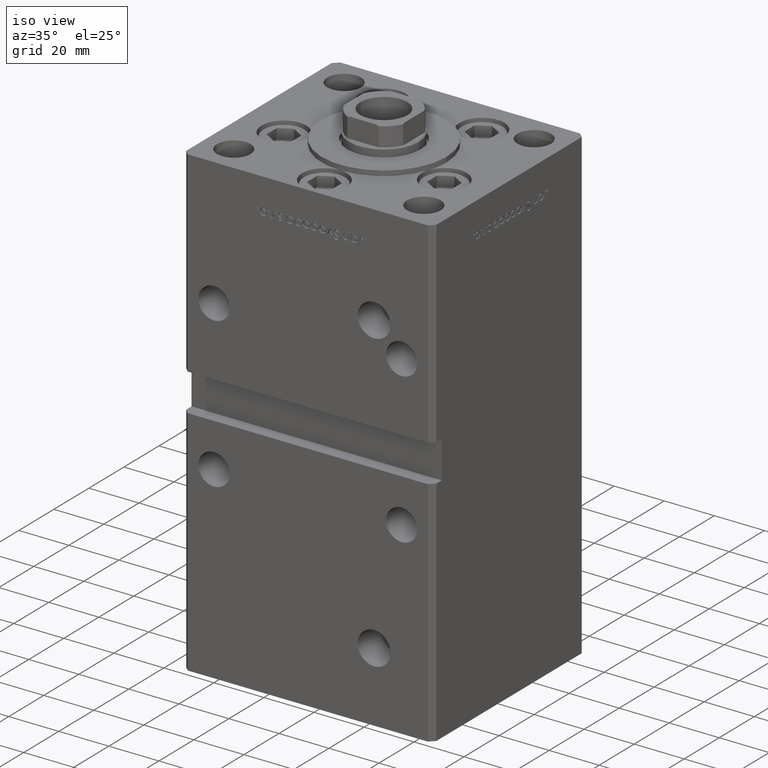
[diagram: clean part render]
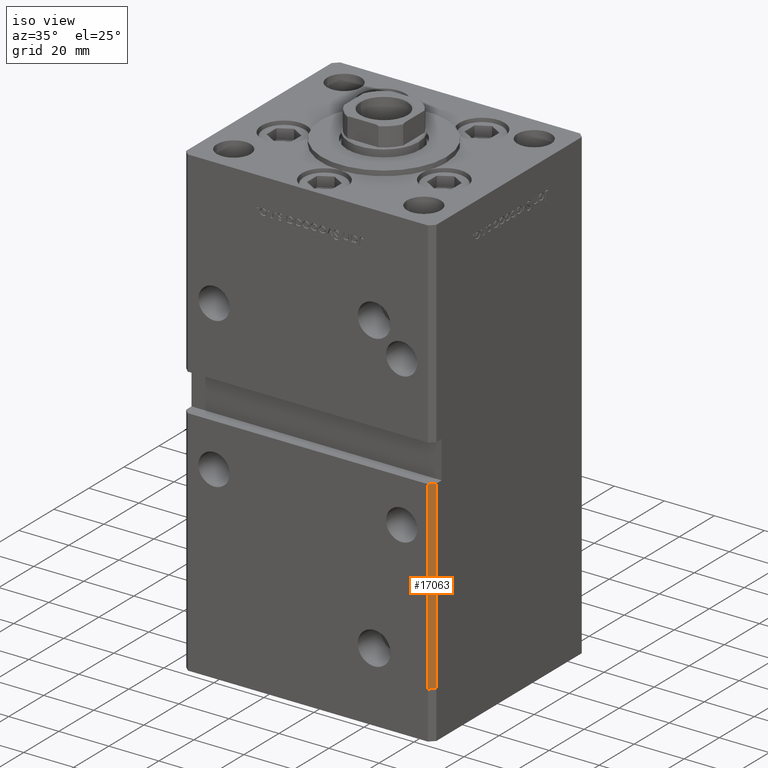
[diagram: same view with one face highlighted and labeled with its STEP entity id]
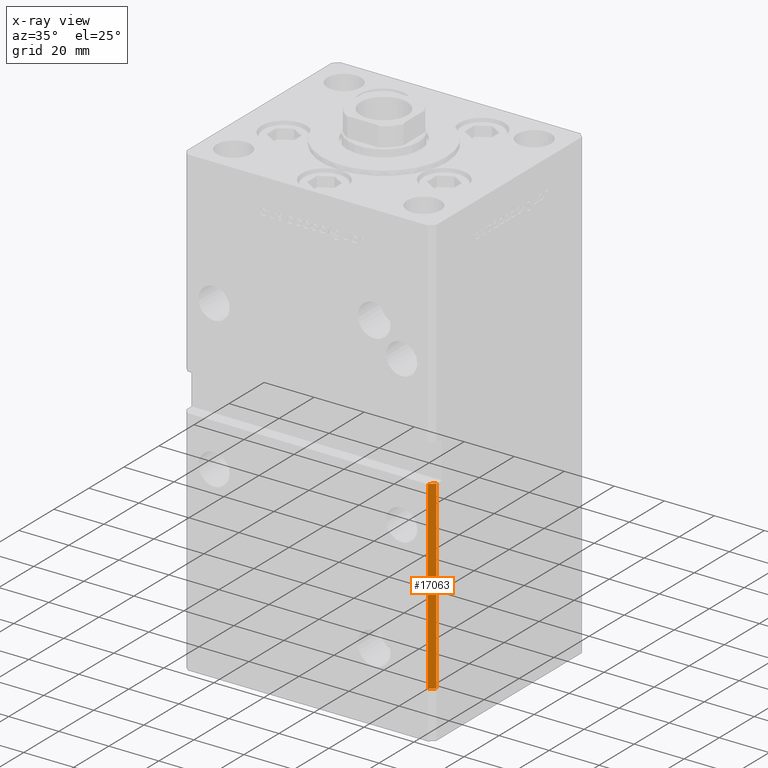
[diagram: x-ray of the same camera — body ghosted, the highlighted face saturated]
A machine part, iso view. The second image highlights one B-rep face of the part: STEP entity #17063.
The next image is the same camera in x-ray: the body ghosted, the highlighted face saturated — about 0% of this face is hidden behind the body in this view.
In plain terms, the highlighted planar face has unit normal (0.7071, -0.7071, 0).
Its self-contained STEP definition (entity closure, byte-faithful):
#3390 = CARTESIAN_POINT ( 'NONE',  ( 47.99999999999998579, -43.50000000000000000, 148.5000000000000000 ) ) ;
#3887 = VERTEX_POINT ( 'NONE', #20495 ) ;
#3940 = CARTESIAN_POINT ( 'NONE',  ( 49.99999999999998579, -41.49999999999999289, 148.5000000000000000 ) ) ;
#5911 = ORIENTED_EDGE ( 'NONE', *, *, #33817, .F. ) ;
#8131 = VECTOR ( 'NONE', #24102, 1000.000000000000000 ) ;
#14568 = CARTESIAN_POINT ( 'NONE',  ( 49.99999999999998579, -41.49999999999999289, 0.000000000000000000 ) ) ;
#14679 = VERTEX_POINT ( 'NONE', #28709 ) ;
#17063 = ADVANCED_FACE ( 'NONE', ( #28672 ), #33233, .T. ) ;
#20037 = LINE ( 'NONE', #3390, #34178 ) ;
#20495 = CARTESIAN_POINT ( 'NONE',  ( 47.99999999999998579, -43.50000000000000000, 0.000000000000000000 ) ) ;
#20568 = VECTOR ( 'NONE', #26957, 1000.000000000000114 ) ;
#24102 = DIRECTION ( 'NONE',  ( -0.000000000000000000, -0.000000000000000000, -1.000000000000000000 ) ) ;
#24377 = LINE ( 'NONE', #3940, #8131 ) ;
#24653 = DIRECTION ( 'NONE',  ( 0.7071067811865475727, -0.7071067811865475727, 0.000000000000000000 ) ) ;
#26957 = DIRECTION ( 'NONE',  ( -0.7071067811865474617, -0.7071067811865474617, 0.000000000000000000 ) ) ;
#27477 = CARTESIAN_POINT ( 'NONE',  ( 49.99999999999998579, -41.49999999999999289, 0.000000000000000000 ) ) ;
#28672 = FACE_OUTER_BOUND ( 'NONE', #41324, .T. ) ;
#28709 = CARTESIAN_POINT ( 'NONE',  ( 49.99999999999998579, -41.49999999999999289, 74.00000000000000000 ) ) ;
#30811 = EDGE_CURVE ( 'NONE', #14679, #36941, #24377, .T. ) ;
#31150 = LINE ( 'NONE', #34926, #36529 ) ;
#31984 = AXIS2_PLACEMENT_3D ( 'NONE', #45087, #24653, #41039 ) ;
#32590 = CARTESIAN_POINT ( 'NONE',  ( 47.99999999999998579, -43.50000000000000000, 74.00000000000000000 ) ) ;
#33233 = PLANE ( 'NONE',  #31984 ) ;
#33817 = EDGE_CURVE ( 'NONE', #52150, #14679, #31150, .T. ) ;
#34178 = VECTOR ( 'NONE', #48284, 1000.000000000000000 ) ;
#34926 = CARTESIAN_POINT ( 'NONE',  ( 49.99999999999998579, -41.49999999999999289, 74.00000000000000000 ) ) ;
#36529 = VECTOR ( 'NONE', #50782, 1000.000000000000114 ) ;
#36941 = VERTEX_POINT ( 'NONE', #27477 ) ;
#41039 = DIRECTION ( 'NONE',  ( 0.7071067811865474617, 0.7071067811865474617, 0.000000000000000000 ) ) ;
#41324 = EDGE_LOOP ( 'NONE', ( #5911, #45827, #48907, #45377 ) ) ;
#44969 = EDGE_CURVE ( 'NONE', #52150, #3887, #20037, .T. ) ;
#45087 = CARTESIAN_POINT ( 'NONE',  ( 49.99999999999998579, -41.49999999999999289, 148.5000000000000000 ) ) ;
#45377 = ORIENTED_EDGE ( 'NONE', *, *, #30811, .F. ) ;
#45827 = ORIENTED_EDGE ( 'NONE', *, *, #44969, .T. ) ;
#48284 = DIRECTION ( 'NONE',  ( -0.000000000000000000, -0.000000000000000000, -1.000000000000000000 ) ) ;
#48907 = ORIENTED_EDGE ( 'NONE', *, *, #50246, .F. ) ;
#50246 = EDGE_CURVE ( 'NONE', #36941, #3887, #51402, .T. ) ;
#50782 = DIRECTION ( 'NONE',  ( 0.7071067811865474617, 0.7071067811865474617, 0.000000000000000000 ) ) ;
#51402 = LINE ( 'NONE', #14568, #20568 ) ;
#52150 = VERTEX_POINT ( 'NONE', #32590 ) ;